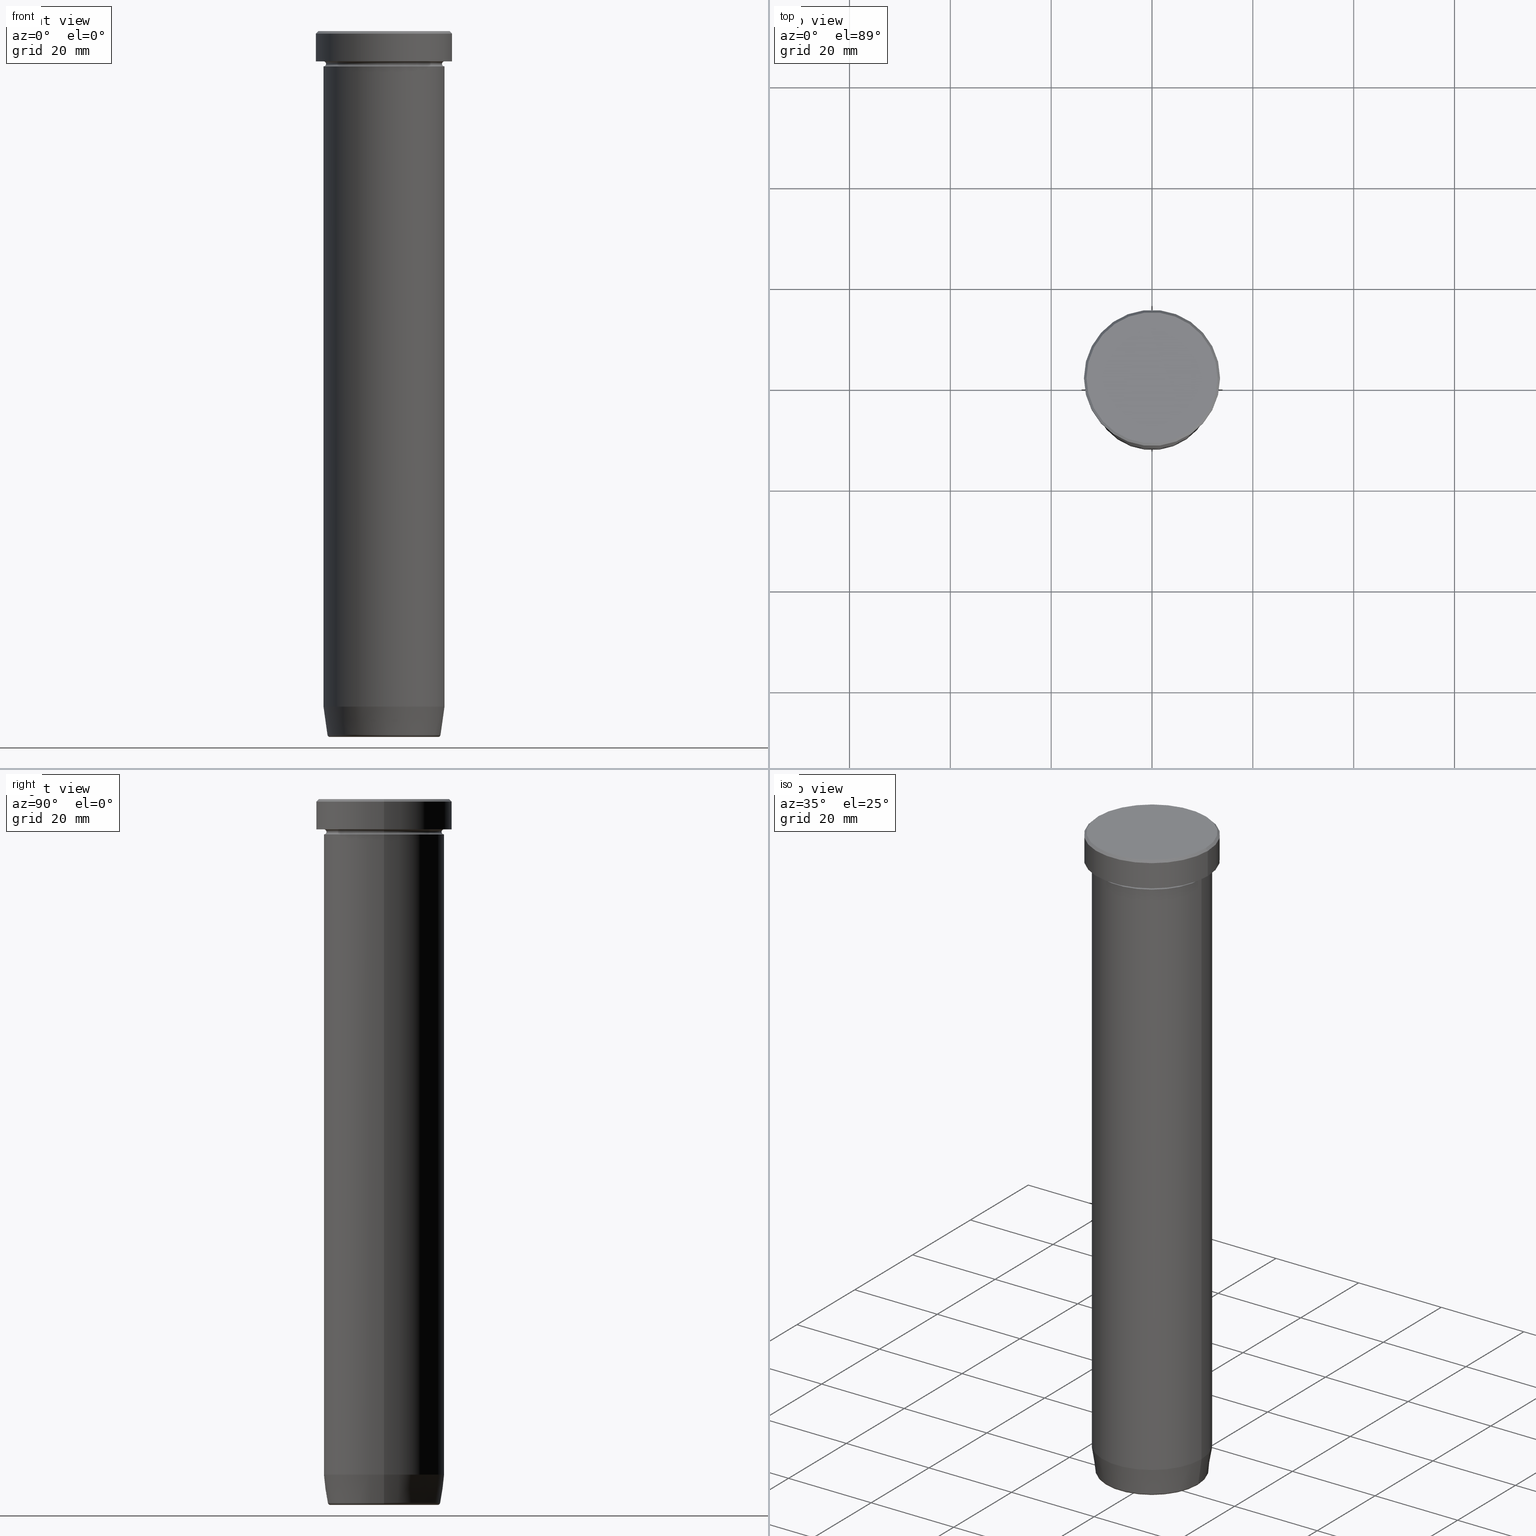
[diagram: canonical four-view strip — front | top / right | iso, engineering-drawing reading convention]
A machine part, canonical four-view strip (front | top / right | iso — engineering-drawing reading convention). The complete STEP part file that produces these views, byte-faithful:
ISO-10303-21;
HEADER;
FILE_DESCRIPTION (( 'STEP AP203' ),
    '1' );
FILE_NAME ('31a6.STEP',
    '2024-01-02T17:52:55',
    ( '' ),
    ( '' ),
    'SwSTEP 2.0',
    'SolidWorks 2019',
    '' );
FILE_SCHEMA (( 'CONFIG_CONTROL_DESIGN' ));
ENDSEC;

DATA;
#1 = AXIS2_PLACEMENT_3D ( 'NONE', #468, #61, #112 ) ;
#2 = CC_DESIGN_DATE_AND_TIME_ASSIGNMENT ( #493, #578, ( #593 ) ) ;
#3 = DIRECTION ( 'NONE',  ( 0.7071067811865439090, 8.659560562354888485E-17, -0.7071067811865512365 ) ) ;
#4 = VECTOR ( 'NONE', #552, 1000.000000000000000 ) ;
#5 = CONICAL_SURFACE ( 'NONE', #515, 12.99999999999999645, 0.7853981633974431720 ) ;
#6 = ORIENTED_EDGE ( 'NONE', *, *, #31, .F. ) ;
#7 = CARTESIAN_POINT ( 'NONE',  ( 12.99999999999999645, 1.622657008870242882E-15, 0.000000000000000000 ) ) ;
#8 = EDGE_LOOP ( 'NONE', ( #286, #555, #152, #334 ) ) ;
#9 = FACE_OUTER_BOUND ( 'NONE', #508, .T. ) ;
#10 = ORIENTED_EDGE ( 'NONE', *, *, #346, .F. ) ;
#11 = ADVANCED_FACE ( 'NONE', ( #105 ), #481, .T. ) ;
#12 = CC_DESIGN_DATE_AND_TIME_ASSIGNMENT ( #531, #448, ( #428 ) ) ;
#13 = DIRECTION ( 'NONE',  ( 1.000000000000000000, 0.000000000000000000, 0.000000000000000000 ) ) ;
#14 = AXIS2_PLACEMENT_3D ( 'NONE', #16, #480, #210 ) ;
#15 = CIRCLE ( 'NONE', #417, 12.00000000000000000 ) ;
#16 = CARTESIAN_POINT ( 'NONE',  ( -10.72211162287753439, 1.313079967905760306E-15, -139.5000000000000000 ) ) ;
#17 = CC_DESIGN_APPROVAL ( #449, ( #593 ) ) ;
#18 = DIRECTION ( 'NONE',  ( 0.000000000000000000, 0.000000000000000000, -1.000000000000000000 ) ) ;
#19 = FACE_BOUND ( 'NONE', #137, .T. ) ;
#20 = ADVANCED_BREP_SHAPE_REPRESENTATION ( '31a6', ( #202, #181, #26 ), #505 ) ;
#21 = DIRECTION ( 'NONE',  ( 1.000000000000000000, 0.000000000000000000, 0.000000000000000000 ) ) ;
#22 = CARTESIAN_POINT ( 'NONE',  ( 0.000000000000000000, 0.000000000000000000, 0.000000000000000000 ) ) ;
#23 = DIRECTION ( 'NONE',  ( -0.1391731009600661872, 1.704378926181564918E-17, 0.9902680687415702510 ) ) ;
#24 = AXIS2_PLACEMENT_3D ( 'NONE', #247, #438, #21 ) ;
#25 = AXIS2_PLACEMENT_3D ( 'NONE', #291, #52, #234 ) ;
#26 = AXIS2_PLACEMENT_3D ( 'NONE', #22, #213, #120 ) ;
#27 = PLANE ( 'NONE',  #204 ) ;
#28 = PERSON_AND_ORGANIZATION_ROLE ( 'design_supplier' ) ;
#29 = CARTESIAN_POINT ( 'NONE',  ( 0.000000000000000000, 0.000000000000000000, -5.999999999999999112 ) ) ;
#30 = ADVANCED_FACE ( 'NONE', ( #254 ), #91, .T. ) ;
#31 = EDGE_CURVE ( 'NONE', #147, #495, #122, .T. ) ;
#32 = PERSON_AND_ORGANIZATION ( #524, #358 ) ;
#33 = LINE ( 'NONE', #274, #482 ) ;
#34 = VERTEX_POINT ( 'NONE', #341 ) ;
#35 = AXIS2_PLACEMENT_3D ( 'NONE', #338, #522, #169 ) ;
#36 = AXIS2_PLACEMENT_3D ( 'NONE', #218, #535, #126 ) ;
#37 = CC_DESIGN_APPROVAL ( #223, ( #428 ) ) ;
#38 = DIRECTION ( 'NONE',  ( 1.000000000000000000, 0.000000000000000000, 0.000000000000000000 ) ) ;
#39 = VERTEX_POINT ( 'NONE', #69 ) ;
#40 = CARTESIAN_POINT ( 'NONE',  ( 0.000000000000000000, 0.000000000000000000, 0.000000000000000000 ) ) ;
#41 = VERTEX_POINT ( 'NONE', #427 ) ;
#42 = APPROVAL_DATE_TIME ( #168, #223 ) ;
#43 = DIRECTION ( 'NONE',  ( 1.000000000000000000, 0.000000000000000000, 0.000000000000000000 ) ) ;
#44 = EDGE_LOOP ( 'NONE', ( #149, #107 ) ) ;
#45 = VECTOR ( 'NONE', #262, 1000.000000000000000 ) ;
#46 = CARTESIAN_POINT ( 'NONE',  ( 12.00000000000000000, 1.469576158976823947E-15, -6.500000000000000888 ) ) ;
#47 = ORIENTED_EDGE ( 'NONE', *, *, #72, .T. ) ;
#48 = CARTESIAN_POINT ( 'NONE',  ( 0.000000000000000000, 0.000000000000000000, 0.000000000000000000 ) ) ;
#49 = ORIENTED_EDGE ( 'NONE', *, *, #411, .T. ) ;
#50 = ADVANCED_FACE ( 'NONE', ( #19, #207 ), #27, .T. ) ;
#51 = EDGE_CURVE ( 'NONE', #491, #595, #433, .T. ) ;
#52 = DIRECTION ( 'NONE',  ( -0.000000000000000000, -0.000000000000000000, 1.000000000000000000 ) ) ;
#53 = EDGE_LOOP ( 'NONE', ( #49, #311, #271, #228 ) ) ;
#54 = CIRCLE ( 'NONE', #386, 12.00000000000000000 ) ;
#55 = LINE ( 'NONE', #89, #4 ) ;
#56 = ORIENTED_EDGE ( 'NONE', *, *, #437, .T. ) ;
#57 = ADVANCED_FACE ( 'NONE', ( #216 ), #343, .T. ) ;
#58 = CYLINDRICAL_SURFACE ( 'NONE', #425, 13.50000000000000000 ) ;
#59 = VERTEX_POINT ( 'NONE', #577 ) ;
#60 = DIRECTION ( 'NONE',  ( -0.000000000000000000, -0.000000000000000000, 1.000000000000000000 ) ) ;
#61 = DIRECTION ( 'NONE',  ( -0.000000000000000000, -0.000000000000000000, 1.000000000000000000 ) ) ;
#62 = AXIS2_PLACEMENT_3D ( 'NONE', #390, #568, #340 ) ;
#63 = CARTESIAN_POINT ( 'NONE',  ( 0.000000000000000000, 0.000000000000000000, -27.00000000000000000 ) ) ;
#64 = APPLICATION_PROTOCOL_DEFINITION ( 'international standard', 'config_control_design', 1994, #151 ) ;
#65 = FACE_OUTER_BOUND ( 'NONE', #470, .T. ) ;
#66 = DIRECTION ( 'NONE',  ( -0.000000000000000000, -0.000000000000000000, 1.000000000000000000 ) ) ;
#67 = DIRECTION ( 'NONE',  ( -0.000000000000000000, -0.000000000000000000, 1.000000000000000000 ) ) ;
#68 = DIRECTION ( 'NONE',  ( 1.000000000000000000, 0.000000000000000000, 0.000000000000000000 ) ) ;
#69 = CARTESIAN_POINT ( 'NONE',  ( 13.50000000000000000, 0.000000000000000000, -0.5000000000000091038 ) ) ;
#70 = VECTOR ( 'NONE', #23, 1000.000000000000000 ) ;
#71 = PERSON_AND_ORGANIZATION_ROLE ( 'classification_officer' ) ;
#72 = EDGE_CURVE ( 'NONE', #595, #143, #195, .T. ) ;
#73 = DIRECTION ( 'NONE',  ( -0.000000000000000000, -0.000000000000000000, 1.000000000000000000 ) ) ;
#74 = EDGE_CURVE ( 'NONE', #39, #156, #512, .T. ) ;
#75 = PERSON_AND_ORGANIZATION_ROLE ( 'design_owner' ) ;
#76 = FACE_OUTER_BOUND ( 'NONE', #199, .T. ) ;
#77 = ORIENTED_EDGE ( 'NONE', *, *, #188, .T. ) ;
#78 = DIRECTION ( 'NONE',  ( 1.000000000000000000, 0.000000000000000000, 0.000000000000000000 ) ) ;
#79 = CLOSED_SHELL ( 'NONE', ( #101, #161, #310, #267, #248, #265, #308, #456, #50, #57, #167, #393, #546 ) ) ;
#80 = ORIENTED_EDGE ( 'NONE', *, *, #500, .F. ) ;
#81 = AXIS2_PLACEMENT_3D ( 'NONE', #430, #67, #212 ) ;
#82 = AXIS2_PLACEMENT_3D ( 'NONE', #40, #186, #85 ) ;
#83 = AXIS2_PLACEMENT_3D ( 'NONE', #154, #380, #382 ) ;
#84 = PERSON_AND_ORGANIZATION_ROLE ( 'creator' ) ;
#85 = DIRECTION ( 'NONE',  ( 1.000000000000000000, 0.000000000000000000, 0.000000000000000000 ) ) ;
#86 = ORIENTED_EDGE ( 'NONE', *, *, #459, .T. ) ;
#87 = DIRECTION ( 'NONE',  ( 1.000000000000000000, 0.000000000000000000, 0.000000000000000000 ) ) ;
#88 = EDGE_LOOP ( 'NONE', ( #245, #377, #187, #323 ) ) ;
#89 = CARTESIAN_POINT ( 'NONE',  ( -12.00000000000000000, 1.469576158976823947E-15, 0.000000000000000000 ) ) ;
#90 = ORIENTED_EDGE ( 'NONE', *, *, #189, .T. ) ;
#91 = CONICAL_SURFACE ( 'NONE', #492, 11.15675499178564678, 0.1396263401595471132 ) ;
#92 = VECTOR ( 'NONE', #509, 1000.000000000000000 ) ;
#93 = DIRECTION ( 'NONE',  ( -0.000000000000000000, -0.000000000000000000, 1.000000000000000000 ) ) ;
#94 = EDGE_CURVE ( 'NONE', #147, #156, #383, .T. ) ;
#95 = ORIENTED_EDGE ( 'NONE', *, *, #346, .T. ) ;
#96 = ADVANCED_FACE ( 'NONE', ( #65 ), #162, .F. ) ;
#97 = FACE_OUTER_BOUND ( 'NONE', #451, .T. ) ;
#98 = ORIENTED_EDGE ( 'NONE', *, *, #141, .T. ) ;
#99 = CARTESIAN_POINT ( 'NONE',  ( 0.000000000000000000, 0.000000000000000000, -6.000000000000000000 ) ) ;
#100 = ORIENTED_EDGE ( 'NONE', *, *, #375, .F. ) ;
#101 = ADVANCED_FACE ( 'NONE', ( #567 ), #172, .T. ) ;
#102 = CIRCLE ( 'NONE', #233, 12.00000000000000000 ) ;
#103 = CARTESIAN_POINT ( 'NONE',  ( 0.000000000000000000, 0.000000000000000000, -139.5000000000000000 ) ) ;
#104 = LOCAL_TIME ( 18, 52, 55.00000000000000000, #484 ) ;
#105 = FACE_OUTER_BOUND ( 'NONE', #237, .T. ) ;
#106 = DIRECTION ( 'NONE',  ( 1.000000000000000000, 0.000000000000000000, 0.000000000000000000 ) ) ;
#107 = ORIENTED_EDGE ( 'NONE', *, *, #140, .F. ) ;
#108 = DIRECTION ( 'NONE',  ( -0.000000000000000000, -0.000000000000000000, 1.000000000000000000 ) ) ;
#109 = APPLICATION_CONTEXT ( 'configuration controlled 3d designs of mechanical parts and assemblies' ) ;
#110 = AXIS2_PLACEMENT_3D ( 'NONE', #306, #108, #472 ) ;
#111 = CIRCLE ( 'NONE', #406, 10.72211162287753439 ) ;
#112 = DIRECTION ( 'NONE',  ( 1.000000000000000000, 0.000000000000000000, 0.000000000000000000 ) ) ;
#113 = CC_DESIGN_PERSON_AND_ORGANIZATION_ASSIGNMENT ( #307, #84, ( #428 ) ) ;
#114 = APPROVAL_PERSON_ORGANIZATION ( #32, #192, #344 ) ;
#115 = CARTESIAN_POINT ( 'NONE',  ( 0.000000000000000000, 0.000000000000000000, -27.00000000000000000 ) ) ;
#116 = CARTESIAN_POINT ( 'NONE',  ( -12.99999999999999645, 0.000000000000000000, 0.000000000000000000 ) ) ;
#117 = DIRECTION ( 'NONE',  ( 0.000000000000000000, 0.000000000000000000, -1.000000000000000000 ) ) ;
#118 = DIRECTION ( 'NONE',  ( -0.000000000000000000, -0.000000000000000000, 1.000000000000000000 ) ) ;
#119 = ADVANCED_FACE ( 'NONE', ( #575 ), #477, .T. ) ;
#120 = DIRECTION ( 'NONE',  ( 1.000000000000000000, 0.000000000000000000, 0.000000000000000000 ) ) ;
#121 = DIRECTION ( 'NONE',  ( 1.000000000000000000, 0.000000000000000000, 0.000000000000000000 ) ) ;
#122 = CIRCLE ( 'NONE', #24, 12.99999999999999645 ) ;
#123 = AXIS2_PLACEMENT_3D ( 'NONE', #579, #485, #594 ) ;
#124 = APPROVAL_PERSON_ORGANIZATION ( #135, #223, #177 ) ;
#125 = CALENDAR_DATE ( 2024, 2, 1 ) ;
#126 = DIRECTION ( 'NONE',  ( 1.000000000000000000, 0.000000000000000000, 0.000000000000000000 ) ) ;
#127 = ORIENTED_EDGE ( 'NONE', *, *, #474, .F. ) ;
#128 = DIRECTION ( 'NONE',  ( -0.000000000000000000, -0.000000000000000000, 1.000000000000000000 ) ) ;
#129 = ORIENTED_EDGE ( 'NONE', *, *, #74, .F. ) ;
#130 = CALENDAR_DATE ( 2024, 2, 1 ) ;
#131 = CARTESIAN_POINT ( 'NONE',  ( 0.000000000000000000, 0.000000000000000000, 0.000000000000000000 ) ) ;
#132 = EDGE_LOOP ( 'NONE', ( #542, #421, #330, #200 ) ) ;
#133 = CIRCLE ( 'NONE', #455, 0.5000000000000004441 ) ;
#134 = CIRCLE ( 'NONE', #457, 0.5000000000000004441 ) ;
#135 = PERSON_AND_ORGANIZATION ( #524, #358 ) ;
#136 = LINE ( 'NONE', #395, #45 ) ;
#137 = EDGE_LOOP ( 'NONE', ( #191, #374 ) ) ;
#138 = PLANE ( 'NONE',  #36 ) ;
#139 = ORIENTED_EDGE ( 'NONE', *, *, #564, .F. ) ;
#140 = EDGE_CURVE ( 'NONE', #591, #59, #443, .T. ) ;
#141 = EDGE_CURVE ( 'NONE', #34, #506, #523, .T. ) ;
#142 = DIRECTION ( 'NONE',  ( 0.000000000000000000, 0.000000000000000000, -1.000000000000000000 ) ) ;
#143 = VERTEX_POINT ( 'NONE', #164 ) ;
#144 = AXIS2_PLACEMENT_3D ( 'NONE', #532, #520, #476 ) ;
#145 = AXIS2_PLACEMENT_3D ( 'NONE', #333, #337, #106 ) ;
#146 = CARTESIAN_POINT ( 'NONE',  ( 12.00000000000000000, 0.000000000000000000, -7.000000000000000000 ) ) ;
#147 = VERTEX_POINT ( 'NONE', #116 ) ;
#148 = DIRECTION ( 'NONE',  ( -0.000000000000000000, -0.000000000000000000, 1.000000000000000000 ) ) ;
#149 = ORIENTED_EDGE ( 'NONE', *, *, #411, .F. ) ;
#150 = DIRECTION ( 'NONE',  ( -0.000000000000000000, -0.000000000000000000, 1.000000000000000000 ) ) ;
#151 = APPLICATION_CONTEXT ( 'configuration controlled 3d designs of mechanical parts and assemblies' ) ;
#152 = ORIENTED_EDGE ( 'NONE', *, *, #565, .T. ) ;
#153 = AXIS2_PLACEMENT_3D ( 'NONE', #405, #452, #43 ) ;
#154 = CARTESIAN_POINT ( 'NONE',  ( 0.000000000000000000, 0.000000000000000000, -6.000000000000000000 ) ) ;
#155 = CIRCLE ( 'NONE', #83, 12.00000000000000000 ) ;
#156 = VERTEX_POINT ( 'NONE', #302 ) ;
#157 = DIRECTION ( 'NONE',  ( 0.000000000000000000, -1.000000000000000000, 0.000000000000000000 ) ) ;
#158 = DIRECTION ( 'NONE',  ( 1.000000000000000000, 0.000000000000000000, 0.000000000000000000 ) ) ;
#159 = EDGE_CURVE ( 'NONE', #595, #585, #256, .T. ) ;
#160 = CARTESIAN_POINT ( 'NONE',  ( 12.00000000000000000, 0.000000000000000000, -27.00000000000000000 ) ) ;
#161 = ADVANCED_FACE ( 'NONE', ( #215 ), #240, .F. ) ;
#162 = PLANE ( 'NONE',  #397 ) ;
#163 = FACE_OUTER_BOUND ( 'NONE', #288, .T. ) ;
#164 = CARTESIAN_POINT ( 'NONE',  ( 11.21724565724831990, 0.000000000000000000, -139.5695865504800395 ) ) ;
#165 = CARTESIAN_POINT ( 'NONE',  ( 0.000000000000000000, 0.000000000000000000, 0.000000000000000000 ) ) ;
#166 = CARTESIAN_POINT ( 'NONE',  ( -12.99999999999999645, 0.000000000000000000, 0.000000000000000000 ) ) ;
#167 = ADVANCED_FACE ( 'NONE', ( #541 ), #205, .F. ) ;
#168 = DATE_AND_TIME ( #174, #104 ) ;
#169 = DIRECTION ( 'NONE',  ( -1.000000000000000000, 0.000000000000000000, 0.000000000000000000 ) ) ;
#170 = PERSON_AND_ORGANIZATION ( #524, #358 ) ;
#171 = FACE_OUTER_BOUND ( 'NONE', #275, .T. ) ;
#172 = CONICAL_SURFACE ( 'NONE', #144, 12.99999999999999645, 0.7853981633974431720 ) ;
#173 = ORIENTED_EDGE ( 'NONE', *, *, #140, .T. ) ;
#174 = CALENDAR_DATE ( 2024, 2, 1 ) ;
#175 = CARTESIAN_POINT ( 'NONE',  ( 0.000000000000000000, 0.000000000000000000, -6.500000000000000888 ) ) ;
#176 = ORIENTED_EDGE ( 'NONE', *, *, #293, .T. ) ;
#177 = APPROVAL_ROLE ( '' ) ;
#178 = CYLINDRICAL_SURFACE ( 'NONE', #357, 12.00000000000000000 ) ;
#179 = VERTEX_POINT ( 'NONE', #589 ) ;
#180 = DESIGN_CONTEXT ( 'detailed design', #109, 'design' ) ;
#181 = MANIFOLD_SOLID_BREP ( 'Zaoblit4', #378 ) ;
#182 = CALENDAR_DATE ( 2024, 2, 1 ) ;
#183 = DIRECTION ( 'NONE',  ( -1.000000000000000000, 0.000000000000000000, -0.000000000000000000 ) ) ;
#184 = EDGE_LOOP ( 'NONE', ( #502, #47, #488, #396 ) ) ;
#185 = CIRCLE ( 'NONE', #581, 12.00000000000000000 ) ;
#186 = DIRECTION ( 'NONE',  ( -0.000000000000000000, -0.000000000000000000, 1.000000000000000000 ) ) ;
#187 = ORIENTED_EDGE ( 'NONE', *, *, #473, .F. ) ;
#188 = EDGE_CURVE ( 'NONE', #41, #39, #33, .T. ) ;
#189 = EDGE_CURVE ( 'NONE', #458, #598, #251, .T. ) ;
#190 = FACE_OUTER_BOUND ( 'NONE', #284, .T. ) ;
#191 = ORIENTED_EDGE ( 'NONE', *, *, #564, .T. ) ;
#192 = APPROVAL ( #229, 'NEUR�EN�' ) ;
#193 = CARTESIAN_POINT ( 'NONE',  ( 0.000000000000000000, 0.000000000000000000, -27.00000000000000000 ) ) ;
#194 = ORIENTED_EDGE ( 'NONE', *, *, #348, .F. ) ;
#195 = CIRCLE ( 'NONE', #35, 11.21724565724831990 ) ;
#196 = AXIS2_PLACEMENT_3D ( 'NONE', #29, #354, #356 ) ;
#197 = LOCAL_TIME ( 18, 52, 55.00000000000000000, #317 ) ;
#198 = DIRECTION ( 'NONE',  ( -0.000000000000000000, -0.000000000000000000, 1.000000000000000000 ) ) ;
#199 = EDGE_LOOP ( 'NONE', ( #359, #580 ) ) ;
#200 = ORIENTED_EDGE ( 'NONE', *, *, #188, .F. ) ;
#201 = CARTESIAN_POINT ( 'NONE',  ( -12.00000000000000000, 1.469576158976823947E-15, 0.000000000000000000 ) ) ;
#202 = MANIFOLD_SOLID_BREP ( 'Zkosen�1', #79 ) ;
#203 = ORIENTED_EDGE ( 'NONE', *, *, #582, .F. ) ;
#204 = AXIS2_PLACEMENT_3D ( 'NONE', #389, #423, #300 ) ;
#205 = TOROIDAL_SURFACE ( 'NONE', #153, 12.00000000000000000, 0.5000000000000000000 ) ;
#206 = CIRCLE ( 'NONE', #483, 10.72211162287753439 ) ;
#207 = FACE_OUTER_BOUND ( 'NONE', #355, .T. ) ;
#208 = EDGE_CURVE ( 'NONE', #34, #598, #299, .T. ) ;
#209 = EDGE_CURVE ( 'NONE', #156, #39, #561, .T. ) ;
#210 = DIRECTION ( 'NONE',  ( -1.000000000000000000, 1.224646799147353454E-16, 0.000000000000000000 ) ) ;
#211 = CC_DESIGN_PERSON_AND_ORGANIZATION_ASSIGNMENT ( #439, #28, ( #534 ) ) ;
#212 = DIRECTION ( 'NONE',  ( 1.000000000000000000, 0.000000000000000000, 0.000000000000000000 ) ) ;
#213 = DIRECTION ( 'NONE',  ( 0.000000000000000000, 0.000000000000000000, 1.000000000000000000 ) ) ;
#214 = TOROIDAL_SURFACE ( 'NONE', #504, 12.00000000000000000, 0.5000000000000000000 ) ;
#215 = FACE_OUTER_BOUND ( 'NONE', #557, .T. ) ;
#216 = FACE_OUTER_BOUND ( 'NONE', #243, .T. ) ;
#217 = COORDINATED_UNIVERSAL_TIME_OFFSET ( 1, 0, .AHEAD. ) ;
#218 = CARTESIAN_POINT ( 'NONE',  ( 0.000000000000000000, 0.000000000000000000, 0.000000000000000000 ) ) ;
#219 = CARTESIAN_POINT ( 'NONE',  ( 10.72211162287753439, 0.000000000000000000, -140.0000000000000000 ) ) ;
#220 = AXIS2_PLACEMENT_3D ( 'NONE', #165, #60, #68 ) ;
#221 = ORIENTED_EDGE ( 'NONE', *, *, #295, .F. ) ;
#222 = AXIS2_PLACEMENT_3D ( 'NONE', #342, #66, #516 ) ;
#223 = APPROVAL ( #583, 'NEUR�EN�' ) ;
#224 = CYLINDRICAL_SURFACE ( 'NONE', #259, 13.50000000000000000 ) ;
#225 = ORIENTED_EDGE ( 'NONE', *, *, #94, .F. ) ;
#226 = COORDINATED_UNIVERSAL_TIME_OFFSET ( 1, 0, .AHEAD. ) ;
#227 = DIRECTION ( 'NONE',  ( -0.000000000000000000, -0.000000000000000000, 1.000000000000000000 ) ) ;
#228 = ORIENTED_EDGE ( 'NONE', *, *, #410, .F. ) ;
#229 = APPROVAL_STATUS ( 'not_yet_approved' ) ;
#230 = CARTESIAN_POINT ( 'NONE',  ( -12.00000000000000000, 1.469576158976823947E-15, -6.500000000000000888 ) ) ;
#231 = EDGE_CURVE ( 'NONE', #232, #491, #111, .T. ) ;
#232 = VERTEX_POINT ( 'NONE', #219 ) ;
#233 = AXIS2_PLACEMENT_3D ( 'NONE', #350, #487, #87 ) ;
#234 = DIRECTION ( 'NONE',  ( 1.000000000000000000, 0.000000000000000000, 0.000000000000000000 ) ) ;
#235 = ORIENTED_EDGE ( 'NONE', *, *, #231, .T. ) ;
#236 = CARTESIAN_POINT ( 'NONE',  ( 12.00000000000000000, 0.000000000000000000, 0.000000000000000000 ) ) ;
#237 = EDGE_LOOP ( 'NONE', ( #498, #599, #194, #221 ) ) ;
#238 = CARTESIAN_POINT ( 'NONE',  ( 0.000000000000000000, 0.000000000000000000, -27.00000000000000000 ) ) ;
#239 = ORIENTED_EDGE ( 'NONE', *, *, #410, .T. ) ;
#240 = TOROIDAL_SURFACE ( 'NONE', #553, 12.00000000000000000, 0.5000000000000000000 ) ;
#241 = CIRCLE ( 'NONE', #369, 12.00000000000000000 ) ;
#242 = DIRECTION ( 'NONE',  ( -1.000000000000000000, -1.224646799147353454E-16, 0.000000000000000000 ) ) ;
#243 = EDGE_LOOP ( 'NONE', ( #100, #173, #239, #419 ) ) ;
#244 = DIRECTION ( 'NONE',  ( -0.000000000000000000, -0.000000000000000000, 1.000000000000000000 ) ) ;
#245 = ORIENTED_EDGE ( 'NONE', *, *, #348, .T. ) ;
#246 = DIRECTION ( 'NONE',  ( 0.000000000000000000, 0.000000000000000000, -1.000000000000000000 ) ) ;
#247 = CARTESIAN_POINT ( 'NONE',  ( 0.000000000000000000, 0.000000000000000000, 0.000000000000000000 ) ) ;
#248 = ADVANCED_FACE ( 'NONE', ( #401 ), #224, .T. ) ;
#249 = ADVANCED_FACE ( 'NONE', ( #171 ), #490, .T. ) ;
#250 = AXIS2_PLACEMENT_3D ( 'NONE', #63, #529, #253 ) ;
#251 = CIRCLE ( 'NONE', #123, 12.00000000000000000 ) ;
#252 = DIRECTION ( 'NONE',  ( -1.000000000000000000, 0.000000000000000000, -0.000000000000000000 ) ) ;
#253 = DIRECTION ( 'NONE',  ( 1.000000000000000000, 0.000000000000000000, 0.000000000000000000 ) ) ;
#254 = FACE_OUTER_BOUND ( 'NONE', #184, .T. ) ;
#255 = DIRECTION ( 'NONE',  ( 1.000000000000000000, 0.000000000000000000, 0.000000000000000000 ) ) ;
#256 = LINE ( 'NONE', #432, #70 ) ;
#257 = VECTOR ( 'NONE', #569, 1000.000000000000000 ) ;
#258 = DIRECTION ( 'NONE',  ( -0.000000000000000000, -1.000000000000000000, -0.000000000000000000 ) ) ;
#259 = AXIS2_PLACEMENT_3D ( 'NONE', #131, #73, #78 ) ;
#260 = DIRECTION ( 'NONE',  ( -0.000000000000000000, -0.000000000000000000, 1.000000000000000000 ) ) ;
#261 = PERSON_AND_ORGANIZATION_ROLE ( 'creator' ) ;
#262 = DIRECTION ( 'NONE',  ( 0.1391731009600661872, 0.000000000000000000, 0.9902680687415702510 ) ) ;
#263 = PRODUCT ( '31a6', '31a6', '', ( #347 ) ) ;
#264 = DIRECTION ( 'NONE',  ( 1.000000000000000000, 0.000000000000000000, 0.000000000000000000 ) ) ;
#265 = ADVANCED_FACE ( 'NONE', ( #494 ), #277, .T. ) ;
#266 = ORIENTED_EDGE ( 'NONE', *, *, #565, .F. ) ;
#267 = ADVANCED_FACE ( 'NONE', ( #497 ), #178, .T. ) ;
#268 = DIRECTION ( 'NONE',  ( 0.000000000000000000, 0.000000000000000000, -1.000000000000000000 ) ) ;
#269 = AXIS2_PLACEMENT_3D ( 'NONE', #527, #385, #571 ) ;
#270 = AXIS2_PLACEMENT_3D ( 'NONE', #103, #366, #560 ) ;
#271 = ORIENTED_EDGE ( 'NONE', *, *, #189, .F. ) ;
#272 = CC_DESIGN_PERSON_AND_ORGANIZATION_ASSIGNMENT ( #304, #261, ( #534 ) ) ;
#273 = APPROVAL_DATE_TIME ( #353, #192 ) ;
#274 = CARTESIAN_POINT ( 'NONE',  ( 13.50000000000000000, 0.000000000000000000, 0.000000000000000000 ) ) ;
#275 = EDGE_LOOP ( 'NONE', ( #127, #545, #466, #514 ) ) ;
#276 = EDGE_CURVE ( 'NONE', #41, #321, #533, .T. ) ;
#277 = PLANE ( 'NONE',  #592 ) ;
#278 = ORIENTED_EDGE ( 'NONE', *, *, #208, .F. ) ;
#279 = CARTESIAN_POINT ( 'NONE',  ( 0.000000000000000000, 0.000000000000000000, -5.999999999999999112 ) ) ;
#280 = ORIENTED_EDGE ( 'NONE', *, *, #208, .T. ) ;
#281 = VECTOR ( 'NONE', #507, 1000.000000000000000 ) ;
#282 = LOCAL_TIME ( 18, 52, 55.00000000000000000, #217 ) ;
#283 = DIRECTION ( 'NONE',  ( 1.000000000000000000, 0.000000000000000000, 0.000000000000000000 ) ) ;
#284 = EDGE_LOOP ( 'NONE', ( #371, #463, #461, #266 ) ) ;
#285 = LINE ( 'NONE', #328, #465 ) ;
#286 = ORIENTED_EDGE ( 'NONE', *, *, #51, .F. ) ;
#287 = DIRECTION ( 'NONE',  ( -0.000000000000000000, -0.000000000000000000, 1.000000000000000000 ) ) ;
#288 = EDGE_LOOP ( 'NONE', ( #292, #6, #416, #129 ) ) ;
#289 = CIRCLE ( 'NONE', #331, 12.00000000000000000 ) ;
#290 = AXIS2_PLACEMENT_3D ( 'NONE', #115, #388, #252 ) ;
#291 = CARTESIAN_POINT ( 'NONE',  ( 0.000000000000000000, 0.000000000000000000, -139.5000000000000000 ) ) ;
#292 = ORIENTED_EDGE ( 'NONE', *, *, #459, .F. ) ;
#293 = EDGE_CURVE ( 'NONE', #539, #562, #102, .T. ) ;
#294 = PLANE ( 'NONE',  #290 ) ;
#295 = EDGE_CURVE ( 'NONE', #143, #363, #136, .T. ) ;
#296 = ORIENTED_EDGE ( 'NONE', *, *, #332, .F. ) ;
#297 = DIRECTION ( 'NONE',  ( -0.000000000000000000, -0.000000000000000000, 1.000000000000000000 ) ) ;
#298 = DIRECTION ( 'NONE',  ( 0.000000000000000000, -0.000000000000000000, 1.000000000000000000 ) ) ;
#299 = CIRCLE ( 'NONE', #445, 0.5000000000000004441 ) ;
#300 = DIRECTION ( 'NONE',  ( -1.000000000000000000, 0.000000000000000000, -0.000000000000000000 ) ) ;
#301 = CARTESIAN_POINT ( 'NONE',  ( -12.00000000000000000, 1.469576158976823947E-15, -7.000000000000000000 ) ) ;
#302 = CARTESIAN_POINT ( 'NONE',  ( -13.50000000000000000, 1.653273178848926867E-15, -0.5000000000000091038 ) ) ;
#303 = CARTESIAN_POINT ( 'NONE',  ( -11.21724565724831990, 1.421646278958347253E-15, -139.5695865504800395 ) ) ;
#304 = PERSON_AND_ORGANIZATION ( #524, #358 ) ;
#305 = AXIS2_PLACEMENT_3D ( 'NONE', #403, #440, #314 ) ;
#306 = CARTESIAN_POINT ( 'NONE',  ( 0.000000000000000000, 0.000000000000000000, 0.000000000000000000 ) ) ;
#307 = PERSON_AND_ORGANIZATION ( #524, #358 ) ;
#308 = ADVANCED_FACE ( 'NONE', ( #76 ), #138, .T. ) ;
#309 = DIRECTION ( 'NONE',  ( -1.000000000000000000, 0.000000000000000000, 0.000000000000000000 ) ) ;
#310 = ADVANCED_FACE ( 'NONE', ( #441 ), #572, .F. ) ;
#311 = ORIENTED_EDGE ( 'NONE', *, *, #375, .T. ) ;
#312 = DIRECTION ( 'NONE',  ( 1.224646799147353207E-16, 1.000000000000000000, 0.000000000000000000 ) ) ;
#313 = EDGE_LOOP ( 'NONE', ( #453, #176 ) ) ;
#314 = DIRECTION ( 'NONE',  ( 1.000000000000000000, 0.000000000000000000, 0.000000000000000000 ) ) ;
#315 = AXIS2_PLACEMENT_3D ( 'NONE', #175, #128, #412 ) ;
#316 = CIRCLE ( 'NONE', #222, 12.00000000000000000 ) ;
#317 = COORDINATED_UNIVERSAL_TIME_OFFSET ( 1, 0, .AHEAD. ) ;
#318 = DIRECTION ( 'NONE',  ( -0.000000000000000000, -0.000000000000000000, 1.000000000000000000 ) ) ;
#319 = EDGE_LOOP ( 'NONE', ( #278, #80, #95, #90 ) ) ;
#320 = DIRECTION ( 'NONE',  ( -0.000000000000000000, -0.000000000000000000, 1.000000000000000000 ) ) ;
#321 = VERTEX_POINT ( 'NONE', #537 ) ;
#322 = CARTESIAN_POINT ( 'NONE',  ( 12.00000000000000000, 0.000000000000000000, -6.500000000000000888 ) ) ;
#323 = ORIENTED_EDGE ( 'NONE', *, *, #326, .F. ) ;
#324 = VECTOR ( 'NONE', #408, 1000.000000000000000 ) ;
#325 = CARTESIAN_POINT ( 'NONE',  ( -13.50000000000000000, 1.653273178848926867E-15, 0.000000000000000000 ) ) ;
#326 = EDGE_CURVE ( 'NONE', #363, #562, #597, .T. ) ;
#327 = ORIENTED_EDGE ( 'NONE', *, *, #209, .F. ) ;
#328 = CARTESIAN_POINT ( 'NONE',  ( 12.99999999999999645, 1.592040838891558701E-15, 0.000000000000000000 ) ) ;
#329 = EDGE_LOOP ( 'NONE', ( #367, #86, #327, #225 ) ) ;
#330 = ORIENTED_EDGE ( 'NONE', *, *, #209, .T. ) ;
#331 = AXIS2_PLACEMENT_3D ( 'NONE', #462, #320, #558 ) ;
#332 = EDGE_CURVE ( 'NONE', #321, #156, #550, .T. ) ;
#333 = CARTESIAN_POINT ( 'NONE',  ( 0.000000000000000000, 0.000000000000000000, -6.500000000000000888 ) ) ;
#334 = ORIENTED_EDGE ( 'NONE', *, *, #72, .F. ) ;
#335 = CARTESIAN_POINT ( 'NONE',  ( 12.00000000000000000, 1.469576158976823947E-15, -6.000000000000000000 ) ) ;
#336 = CARTESIAN_POINT ( 'NONE',  ( 0.000000000000000000, 0.000000000000000000, -140.0000000000000000 ) ) ;
#337 = DIRECTION ( 'NONE',  ( -0.000000000000000000, -0.000000000000000000, 1.000000000000000000 ) ) ;
#338 = CARTESIAN_POINT ( 'NONE',  ( 0.000000000000000000, 0.000000000000000000, -139.5695865504800395 ) ) ;
#339 = VECTOR ( 'NONE', #93, 1000.000000000000000 ) ;
#340 = DIRECTION ( 'NONE',  ( -1.000000000000000000, 0.000000000000000000, 0.000000000000000000 ) ) ;
#341 = CARTESIAN_POINT ( 'NONE',  ( -11.50000000000000000, 1.438959988998139963E-15, -6.500000000000000888 ) ) ;
#342 = CARTESIAN_POINT ( 'NONE',  ( 0.000000000000000000, 0.000000000000000000, -7.000000000000000000 ) ) ;
#343 = CYLINDRICAL_SURFACE ( 'NONE', #424, 12.00000000000000000 ) ;
#344 = APPROVAL_ROLE ( '' ) ;
#345 = CARTESIAN_POINT ( 'NONE',  ( 0.000000000000000000, 7.347880794884119933E-15, -140.0000000000000000 ) ) ;
#346 = EDGE_CURVE ( 'NONE', #506, #458, #368, .T. ) ;
#347 = MECHANICAL_CONTEXT ( 'NONE', #151, 'mechanical' ) ;
#348 = EDGE_CURVE ( 'NONE', #363, #585, #289, .T. ) ;
#349 = CIRCLE ( 'NONE', #415, 13.50000000000000000 ) ;
#350 = CARTESIAN_POINT ( 'NONE',  ( 0.000000000000000000, 0.000000000000000000, -27.00000000000000000 ) ) ;
#351 = DATE_AND_TIME ( #130, #197 ) ;
#352 = ORIENTED_EDGE ( 'NONE', *, *, #141, .F. ) ;
#353 = DATE_AND_TIME ( #125, #573 ) ;
#354 = DIRECTION ( 'NONE',  ( -0.000000000000000000, -0.000000000000000000, 1.000000000000000000 ) ) ;
#355 = EDGE_LOOP ( 'NONE', ( #442, #510 ) ) ;
#356 = DIRECTION ( 'NONE',  ( 1.000000000000000000, 0.000000000000000000, 0.000000000000000000 ) ) ;
#357 = AXIS2_PLACEMENT_3D ( 'NONE', #547, #318, #264 ) ;
#358 = ORGANIZATION ( 'NEUR�EN�', 'NEUR�EN�', '' ) ;
#359 = ORIENTED_EDGE ( 'NONE', *, *, #31, .T. ) ;
#360 = CARTESIAN_POINT ( 'NONE',  ( 0.000000000000000000, 12.00000000000000000, -27.00000000000000000 ) ) ;
#361 = EDGE_LOOP ( 'NONE', ( #352, #280, #409, #10 ) ) ;
#362 = CARTESIAN_POINT ( 'NONE',  ( 0.000000000000000000, 0.000000000000000000, -6.500000000000000888 ) ) ;
#363 = VERTEX_POINT ( 'NONE', #501 ) ;
#364 = ADVANCED_FACE ( 'NONE', ( #376 ), #525, .T. ) ;
#365 = EDGE_CURVE ( 'NONE', #506, #587, #133, .T. ) ;
#366 = DIRECTION ( 'NONE',  ( -0.000000000000000000, -0.000000000000000000, 1.000000000000000000 ) ) ;
#367 = ORIENTED_EDGE ( 'NONE', *, *, #518, .F. ) ;
#368 = CIRCLE ( 'NONE', #434, 0.5000000000000004441 ) ;
#369 = AXIS2_PLACEMENT_3D ( 'NONE', #574, #297, #255 ) ;
#370 = DIRECTION ( 'NONE',  ( 1.000000000000000000, 0.000000000000000000, 0.000000000000000000 ) ) ;
#371 = ORIENTED_EDGE ( 'NONE', *, *, #584, .F. ) ;
#372 = PRODUCT_DEFINITION_SHAPE ( 'NONE', 'NONE',  #428 ) ;
#373 = DIRECTION ( 'NONE',  ( 0.000000000000000000, 0.000000000000000000, -1.000000000000000000 ) ) ;
#374 = ORIENTED_EDGE ( 'NONE', *, *, #478, .T. ) ;
#375 = EDGE_CURVE ( 'NONE', #591, #598, #55, .T. ) ;
#376 = FACE_OUTER_BOUND ( 'NONE', #8, .T. ) ;
#377 = ORIENTED_EDGE ( 'NONE', *, *, #474, .T. ) ;
#378 = CLOSED_SHELL ( 'NONE', ( #392, #11, #119, #538, #249, #30, #96, #364 ) ) ;
#379 = TOROIDAL_SURFACE ( 'NONE', #25, 10.72211162287753439, 0.5000000000000000000 ) ;
#380 = DIRECTION ( 'NONE',  ( -0.000000000000000000, -0.000000000000000000, 1.000000000000000000 ) ) ;
#381 = DIRECTION ( 'NONE',  ( 1.000000000000000000, 0.000000000000000000, 0.000000000000000000 ) ) ;
#382 = DIRECTION ( 'NONE',  ( -1.000000000000000000, 0.000000000000000000, 0.000000000000000000 ) ) ;
#383 = LINE ( 'NONE', #166, #257 ) ;
#384 = DIRECTION ( 'NONE',  ( -1.000000000000000000, 0.000000000000000000, 0.000000000000000000 ) ) ;
#385 = DIRECTION ( 'NONE',  ( 0.000000000000000000, 0.000000000000000000, -1.000000000000000000 ) ) ;
#386 = AXIS2_PLACEMENT_3D ( 'NONE', #238, #198, #370 ) ;
#387 = CIRCLE ( 'NONE', #543, 0.5000000000000004441 ) ;
#388 = DIRECTION ( 'NONE',  ( 0.000000000000000000, 0.000000000000000000, -1.000000000000000000 ) ) ;
#389 = CARTESIAN_POINT ( 'NONE',  ( 0.000000000000000000, 13.50000000000000000, -6.000000000000000000 ) ) ;
#390 = CARTESIAN_POINT ( 'NONE',  ( 0.000000000000000000, 0.000000000000000000, -139.5695865504800395 ) ) ;
#391 = CARTESIAN_POINT ( 'NONE',  ( 0.000000000000000000, 0.000000000000000000, 0.000000000000000000 ) ) ;
#392 = ADVANCED_FACE ( 'NONE', ( #190 ), #379, .T. ) ;
#393 = ADVANCED_FACE ( 'NONE', ( #97 ), #214, .F. ) ;
#394 = PERSON_AND_ORGANIZATION ( #524, #358 ) ;
#395 = CARTESIAN_POINT ( 'NONE',  ( 11.15675499178564678, 0.000000000000000000, -140.0000000000000000 ) ) ;
#396 = ORIENTED_EDGE ( 'NONE', *, *, #590, .F. ) ;
#397 = AXIS2_PLACEMENT_3D ( 'NONE', #345, #298, #121 ) ;
#398 = APPROVAL_STATUS ( 'not_yet_approved' ) ;
#399 = CIRCLE ( 'NONE', #145, 11.50000000000000000 ) ;
#400 = DIRECTION ( 'NONE',  ( 0.000000000000000000, 0.000000000000000000, -1.000000000000000000 ) ) ;
#401 = FACE_OUTER_BOUND ( 'NONE', #132, .T. ) ;
#402 = COORDINATED_UNIVERSAL_TIME_OFFSET ( 1, 0, .AHEAD. ) ;
#403 = CARTESIAN_POINT ( 'NONE',  ( 0.000000000000000000, 0.000000000000000000, -0.5000000000000091038 ) ) ;
#404 = ORIENTED_EDGE ( 'NONE', *, *, #365, .F. ) ;
#405 = CARTESIAN_POINT ( 'NONE',  ( 0.000000000000000000, 0.000000000000000000, -6.500000000000000888 ) ) ;
#406 = AXIS2_PLACEMENT_3D ( 'NONE', #450, #447, #38 ) ;
#407 = ORIENTED_EDGE ( 'NONE', *, *, #365, .T. ) ;
#408 = DIRECTION ( 'NONE',  ( -0.000000000000000000, -0.000000000000000000, 1.000000000000000000 ) ) ;
#409 = ORIENTED_EDGE ( 'NONE', *, *, #519, .T. ) ;
#410 = EDGE_CURVE ( 'NONE', #59, #458, #503, .T. ) ;
#411 = EDGE_CURVE ( 'NONE', #59, #591, #15, .T. ) ;
#412 = DIRECTION ( 'NONE',  ( 1.000000000000000000, 0.000000000000000000, 0.000000000000000000 ) ) ;
#413 = ORIENTED_EDGE ( 'NONE', *, *, #582, .T. ) ;
#414 = CARTESIAN_POINT ( 'NONE',  ( 12.00000000000000000, 0.000000000000000000, 0.000000000000000000 ) ) ;
#415 = AXIS2_PLACEMENT_3D ( 'NONE', #279, #148, #460 ) ;
#416 = ORIENTED_EDGE ( 'NONE', *, *, #94, .T. ) ;
#417 = AXIS2_PLACEMENT_3D ( 'NONE', #193, #150, #283 ) ;
#418 = CARTESIAN_POINT ( 'NONE',  ( -10.72211162287753439, 1.343398183422815235E-15, -140.0000000000000000 ) ) ;
#419 = ORIENTED_EDGE ( 'NONE', *, *, #519, .F. ) ;
#420 = DIRECTION ( 'NONE',  ( 1.000000000000000000, 0.000000000000000000, 0.000000000000000000 ) ) ;
#421 = ORIENTED_EDGE ( 'NONE', *, *, #332, .T. ) ;
#422 = CARTESIAN_POINT ( 'NONE',  ( 0.000000000000000000, 0.000000000000000000, -140.0000000000000000 ) ) ;
#423 = DIRECTION ( 'NONE',  ( 0.000000000000000000, 0.000000000000000000, -1.000000000000000000 ) ) ;
#424 = AXIS2_PLACEMENT_3D ( 'NONE', #391, #118, #381 ) ;
#425 = AXIS2_PLACEMENT_3D ( 'NONE', #48, #244, #420 ) ;
#426 =( NAMED_UNIT ( * ) SI_UNIT ( $, .STERADIAN. ) SOLID_ANGLE_UNIT ( ) );
#427 = CARTESIAN_POINT ( 'NONE',  ( 13.50000000000000000, 0.000000000000000000, -5.999999999999999112 ) ) ;
#428 = PRODUCT_DEFINITION ( 'NEZN�M�', '', #534, #180 ) ;
#429 = CARTESIAN_POINT ( 'NONE',  ( -12.00000000000000000, 0.000000000000000000, -6.500000000000000888 ) ) ;
#430 = CARTESIAN_POINT ( 'NONE',  ( 0.000000000000000000, 0.000000000000000000, -6.500000000000000888 ) ) ;
#431 = CARTESIAN_POINT ( 'NONE',  ( -12.00000000000000000, 1.469576158976823947E-15, -134.0000000000000000 ) ) ;
#432 = CARTESIAN_POINT ( 'NONE',  ( -11.15675499178564678, 1.366308428956154791E-15, -140.0000000000000000 ) ) ;
#433 = CIRCLE ( 'NONE', #14, 0.5000000000000004441 ) ;
#434 = AXIS2_PLACEMENT_3D ( 'NONE', #322, #454, #373 ) ;
#435 = LOCAL_TIME ( 18, 52, 55.00000000000000000, #402 ) ;
#436 = CARTESIAN_POINT ( 'NONE',  ( -12.00000000000000000, 1.469576158976823947E-15, -27.00000000000000000 ) ) ;
#437 = EDGE_CURVE ( 'NONE', #321, #41, #349, .T. ) ;
#438 = DIRECTION ( 'NONE',  ( -0.000000000000000000, -0.000000000000000000, 1.000000000000000000 ) ) ;
#439 = PERSON_AND_ORGANIZATION ( #524, #358 ) ;
#440 = DIRECTION ( 'NONE',  ( 0.000000000000000000, 0.000000000000000000, -1.000000000000000000 ) ) ;
#441 = FACE_OUTER_BOUND ( 'NONE', #361, .T. ) ;
#442 = ORIENTED_EDGE ( 'NONE', *, *, #276, .F. ) ;
#443 = CIRCLE ( 'NONE', #250, 12.00000000000000000 ) ;
#444 = APPLICATION_PROTOCOL_DEFINITION ( 'international standard', 'config_control_design', 1994, #109 ) ;
#445 = AXIS2_PLACEMENT_3D ( 'NONE', #230, #312, #586 ) ;
#446 = APPROVAL_PERSON_ORGANIZATION ( #170, #449, #540 ) ;
#447 = DIRECTION ( 'NONE',  ( 0.000000000000000000, 0.000000000000000000, -1.000000000000000000 ) ) ;
#448 = DATE_TIME_ROLE ( 'creation_date' ) ;
#449 = APPROVAL ( #398, 'NEUR�EN�' ) ;
#450 = CARTESIAN_POINT ( 'NONE',  ( 0.000000000000000000, 0.000000000000000000, -140.0000000000000000 ) ) ;
#451 = EDGE_LOOP ( 'NONE', ( #404, #551, #413, #559 ) ) ;
#452 = DIRECTION ( 'NONE',  ( -0.000000000000000000, -0.000000000000000000, 1.000000000000000000 ) ) ;
#453 = ORIENTED_EDGE ( 'NONE', *, *, #473, .T. ) ;
#454 = DIRECTION ( 'NONE',  ( 0.000000000000000000, -1.000000000000000000, 0.000000000000000000 ) ) ;
#455 = AXIS2_PLACEMENT_3D ( 'NONE', #46, #511, #242 ) ;
#456 = ADVANCED_FACE ( 'NONE', ( #9 ), #58, .T. ) ;
#457 = AXIS2_PLACEMENT_3D ( 'NONE', #429, #258, #117 ) ;
#458 = VERTEX_POINT ( 'NONE', #146 ) ;
#459 = EDGE_CURVE ( 'NONE', #495, #39, #285, .T. ) ;
#460 = DIRECTION ( 'NONE',  ( 1.000000000000000000, 0.000000000000000000, 0.000000000000000000 ) ) ;
#461 = ORIENTED_EDGE ( 'NONE', *, *, #499, .F. ) ;
#462 = CARTESIAN_POINT ( 'NONE',  ( 0.000000000000000000, 0.000000000000000000, -134.0000000000000000 ) ) ;
#463 = ORIENTED_EDGE ( 'NONE', *, *, #51, .T. ) ;
#464 = DIRECTION ( 'NONE',  ( -1.000000000000000000, 0.000000000000000000, 0.000000000000000000 ) ) ;
#465 = VECTOR ( 'NONE', #3, 1000.000000000000000 ) ;
#466 = ORIENTED_EDGE ( 'NONE', *, *, #326, .T. ) ;
#467 = DIRECTION ( 'NONE',  ( -1.000000000000000000, 0.000000000000000000, 0.000000000000000000 ) ) ;
#468 = CARTESIAN_POINT ( 'NONE',  ( 0.000000000000000000, 0.000000000000000000, -140.0000000000000000 ) ) ;
#469 = DIRECTION ( 'NONE',  ( 0.000000000000000000, 0.000000000000000000, -1.000000000000000000 ) ) ;
#470 = EDGE_LOOP ( 'NONE', ( #235, #517 ) ) ;
#471 = CARTESIAN_POINT ( 'NONE',  ( 0.000000000000000000, 0.000000000000000000, 0.000000000000000000 ) ) ;
#472 = DIRECTION ( 'NONE',  ( 1.000000000000000000, 0.000000000000000000, 0.000000000000000000 ) ) ;
#473 = EDGE_CURVE ( 'NONE', #562, #539, #54, .T. ) ;
#474 = EDGE_CURVE ( 'NONE', #585, #539, #556, .T. ) ;
#475 = CIRCLE ( 'NONE', #220, 12.99999999999999645 ) ;
#476 = DIRECTION ( 'NONE',  ( -1.000000000000000000, 0.000000000000000000, 0.000000000000000000 ) ) ;
#477 = CYLINDRICAL_SURFACE ( 'NONE', #110, 12.00000000000000000 ) ;
#478 = EDGE_CURVE ( 'NONE', #587, #179, #185, .T. ) ;
#479 =( NAMED_UNIT ( * ) PLANE_ANGLE_UNIT ( ) SI_UNIT ( $, .RADIAN. ) );
#480 = DIRECTION ( 'NONE',  ( 1.224646799147353207E-16, 1.000000000000000000, 0.000000000000000000 ) ) ;
#481 = CONICAL_SURFACE ( 'NONE', #1, 11.15675499178564678, 0.1396263401595471132 ) ;
#482 = VECTOR ( 'NONE', #227, 1000.000000000000000 ) ;
#483 = AXIS2_PLACEMENT_3D ( 'NONE', #422, #18, #13 ) ;
#484 = COORDINATED_UNIVERSAL_TIME_OFFSET ( 1, 0, .AHEAD. ) ;
#485 = DIRECTION ( 'NONE',  ( -0.000000000000000000, -0.000000000000000000, 1.000000000000000000 ) ) ;
#486 = SECURITY_CLASSIFICATION_LEVEL ( 'unclassified' ) ;
#487 = DIRECTION ( 'NONE',  ( -0.000000000000000000, -0.000000000000000000, 1.000000000000000000 ) ) ;
#488 = ORIENTED_EDGE ( 'NONE', *, *, #295, .T. ) ;
#489 = CALENDAR_DATE ( 2024, 2, 1 ) ;
#490 = CYLINDRICAL_SURFACE ( 'NONE', #82, 12.00000000000000000 ) ;
#491 = VERTEX_POINT ( 'NONE', #418 ) ;
#492 = AXIS2_PLACEMENT_3D ( 'NONE', #336, #260, #158 ) ;
#493 = DATE_AND_TIME ( #182, #282 ) ;
#494 = FACE_OUTER_BOUND ( 'NONE', #44, .T. ) ;
#495 = VERTEX_POINT ( 'NONE', #7 ) ;
#496 = SHAPE_DEFINITION_REPRESENTATION ( #372, #20 ) ;
#497 = FACE_OUTER_BOUND ( 'NONE', #53, .T. ) ;
#498 = ORIENTED_EDGE ( 'NONE', *, *, #499, .T. ) ;
#499 = EDGE_CURVE ( 'NONE', #143, #595, #513, .T. ) ;
#500 = EDGE_CURVE ( 'NONE', #506, #34, #399, .T. ) ;
#501 = CARTESIAN_POINT ( 'NONE',  ( 12.00000000000000000, 0.000000000000000000, -134.0000000000000000 ) ) ;
#502 = ORIENTED_EDGE ( 'NONE', *, *, #159, .F. ) ;
#503 = LINE ( 'NONE', #236, #339 ) ;
#504 = AXIS2_PLACEMENT_3D ( 'NONE', #362, #142, #467 ) ;
#505 =( GEOMETRIC_REPRESENTATION_CONTEXT ( 3 ) GLOBAL_UNCERTAINTY_ASSIGNED_CONTEXT ( ( #530 ) ) GLOBAL_UNIT_ASSIGNED_CONTEXT ( ( #566, #479, #426 ) ) REPRESENTATION_CONTEXT ( 'NONE', 'WORKASPACE' ) );
#506 = VERTEX_POINT ( 'NONE', #526 ) ;
#507 = DIRECTION ( 'NONE',  ( -0.000000000000000000, -0.000000000000000000, 1.000000000000000000 ) ) ;
#508 = EDGE_LOOP ( 'NONE', ( #296, #56, #77, #548 ) ) ;
#509 = DIRECTION ( 'NONE',  ( -0.000000000000000000, -0.000000000000000000, 1.000000000000000000 ) ) ;
#510 = ORIENTED_EDGE ( 'NONE', *, *, #437, .F. ) ;
#511 = DIRECTION ( 'NONE',  ( -1.224646799147353207E-16, 1.000000000000000000, 0.000000000000000000 ) ) ;
#512 = CIRCLE ( 'NONE', #269, 13.50000000000000000 ) ;
#513 = CIRCLE ( 'NONE', #62, 11.21724565724831990 ) ;
#514 = ORIENTED_EDGE ( 'NONE', *, *, #293, .F. ) ;
#515 = AXIS2_PLACEMENT_3D ( 'NONE', #471, #469, #384 ) ;
#516 = DIRECTION ( 'NONE',  ( 1.000000000000000000, 0.000000000000000000, 0.000000000000000000 ) ) ;
#517 = ORIENTED_EDGE ( 'NONE', *, *, #584, .T. ) ;
#518 = EDGE_CURVE ( 'NONE', #495, #147, #475, .T. ) ;
#519 = EDGE_CURVE ( 'NONE', #598, #458, #316, .T. ) ;
#520 = DIRECTION ( 'NONE',  ( 0.000000000000000000, 0.000000000000000000, -1.000000000000000000 ) ) ;
#521 = FACE_OUTER_BOUND ( 'NONE', #313, .T. ) ;
#522 = DIRECTION ( 'NONE',  ( -0.000000000000000000, -0.000000000000000000, 1.000000000000000000 ) ) ;
#523 = CIRCLE ( 'NONE', #81, 11.50000000000000000 ) ;
#524 = PERSON ( 'NEUR�EN�', 'NEUR�EN�', 'NEUR�EN�', ('NEUR�EN�'), ('NEUR�EN�'), ('NEUR�EN�') ) ;
#525 = TOROIDAL_SURFACE ( 'NONE', #270, 10.72211162287753439, 0.5000000000000000000 ) ;
#526 = CARTESIAN_POINT ( 'NONE',  ( 11.50000000000000000, 0.000000000000000000, -6.500000000000000888 ) ) ;
#527 = CARTESIAN_POINT ( 'NONE',  ( 0.000000000000000000, 0.000000000000000000, -0.5000000000000091038 ) ) ;
#528 = CARTESIAN_POINT ( 'NONE',  ( 10.72211162287753439, 0.000000000000000000, -139.5000000000000000 ) ) ;
#529 = DIRECTION ( 'NONE',  ( -0.000000000000000000, -0.000000000000000000, 1.000000000000000000 ) ) ;
#530 = UNCERTAINTY_MEASURE_WITH_UNIT (LENGTH_MEASURE( 1.000000000000000082E-05 ), #566, 'distance_accuracy_value', 'NONE');
#531 = DATE_AND_TIME ( #489, #435 ) ;
#532 = CARTESIAN_POINT ( 'NONE',  ( 0.000000000000000000, 0.000000000000000000, 0.000000000000000000 ) ) ;
#533 = CIRCLE ( 'NONE', #196, 13.50000000000000000 ) ;
#534 = PRODUCT_DEFINITION_FORMATION_WITH_SPECIFIED_SOURCE ( 'LIBOVOLN�', '', #263, .NOT_KNOWN. ) ;
#535 = DIRECTION ( 'NONE',  ( 0.000000000000000000, -0.000000000000000000, 1.000000000000000000 ) ) ;
#536 = CC_DESIGN_PERSON_AND_ORGANIZATION_ASSIGNMENT ( #394, #75, ( #263 ) ) ;
#537 = CARTESIAN_POINT ( 'NONE',  ( -13.50000000000000000, 1.653273178848926867E-15, -5.999999999999999112 ) ) ;
#538 = ADVANCED_FACE ( 'NONE', ( #521 ), #294, .F. ) ;
#539 = VERTEX_POINT ( 'NONE', #570 ) ;
#540 = APPROVAL_ROLE ( '' ) ;
#541 = FACE_OUTER_BOUND ( 'NONE', #319, .T. ) ;
#542 = ORIENTED_EDGE ( 'NONE', *, *, #276, .T. ) ;
#543 = AXIS2_PLACEMENT_3D ( 'NONE', #528, #157, #246 ) ;
#544 = CARTESIAN_POINT ( 'NONE',  ( 0.000000000000000000, 0.000000000000000000, -6.500000000000000888 ) ) ;
#545 = ORIENTED_EDGE ( 'NONE', *, *, #590, .T. ) ;
#546 = ADVANCED_FACE ( 'NONE', ( #163 ), #5, .T. ) ;
#547 = CARTESIAN_POINT ( 'NONE',  ( 0.000000000000000000, 0.000000000000000000, 0.000000000000000000 ) ) ;
#548 = ORIENTED_EDGE ( 'NONE', *, *, #74, .T. ) ;
#549 = PRODUCT_RELATED_PRODUCT_CATEGORY ( 'detail', '', ( #263 ) ) ;
#550 = LINE ( 'NONE', #325, #281 ) ;
#551 = ORIENTED_EDGE ( 'NONE', *, *, #500, .T. ) ;
#552 = DIRECTION ( 'NONE',  ( -0.000000000000000000, -0.000000000000000000, 1.000000000000000000 ) ) ;
#553 = AXIS2_PLACEMENT_3D ( 'NONE', #544, #268, #309 ) ;
#554 = CC_DESIGN_SECURITY_CLASSIFICATION ( #593, ( #534 ) ) ;
#555 = ORIENTED_EDGE ( 'NONE', *, *, #231, .F. ) ;
#556 = LINE ( 'NONE', #201, #92 ) ;
#557 = EDGE_LOOP ( 'NONE', ( #98, #407, #139, #203 ) ) ;
#558 = DIRECTION ( 'NONE',  ( 1.000000000000000000, 0.000000000000000000, 0.000000000000000000 ) ) ;
#559 = ORIENTED_EDGE ( 'NONE', *, *, #478, .F. ) ;
#560 = DIRECTION ( 'NONE',  ( 1.000000000000000000, 0.000000000000000000, 0.000000000000000000 ) ) ;
#561 = CIRCLE ( 'NONE', #305, 13.50000000000000000 ) ;
#562 = VERTEX_POINT ( 'NONE', #160 ) ;
#563 = CC_DESIGN_APPROVAL ( #192, ( #534 ) ) ;
#564 = EDGE_CURVE ( 'NONE', #179, #587, #155, .T. ) ;
#565 = EDGE_CURVE ( 'NONE', #232, #143, #387, .T. ) ;
#566 =( LENGTH_UNIT ( ) NAMED_UNIT ( * ) SI_UNIT ( .MILLI., .METRE. ) );
#567 = FACE_OUTER_BOUND ( 'NONE', #329, .T. ) ;
#568 = DIRECTION ( 'NONE',  ( -0.000000000000000000, -0.000000000000000000, 1.000000000000000000 ) ) ;
#569 = DIRECTION ( 'NONE',  ( -0.7071067811865439090, 0.000000000000000000, -0.7071067811865512365 ) ) ;
#570 = CARTESIAN_POINT ( 'NONE',  ( -12.00000000000000000, 1.469576158976823947E-15, -27.00000000000000000 ) ) ;
#571 = DIRECTION ( 'NONE',  ( 1.000000000000000000, 0.000000000000000000, 0.000000000000000000 ) ) ;
#572 = TOROIDAL_SURFACE ( 'NONE', #315, 12.00000000000000000, 0.5000000000000000000 ) ;
#573 = LOCAL_TIME ( 18, 52, 55.00000000000000000, #226 ) ;
#574 = CARTESIAN_POINT ( 'NONE',  ( 0.000000000000000000, 0.000000000000000000, -134.0000000000000000 ) ) ;
#575 = FACE_OUTER_BOUND ( 'NONE', #88, .T. ) ;
#576 = APPROVAL_DATE_TIME ( #351, #449 ) ;
#577 = CARTESIAN_POINT ( 'NONE',  ( 12.00000000000000000, 0.000000000000000000, -27.00000000000000000 ) ) ;
#578 = DATE_TIME_ROLE ( 'classification_date' ) ;
#579 = CARTESIAN_POINT ( 'NONE',  ( 0.000000000000000000, 0.000000000000000000, -7.000000000000000000 ) ) ;
#580 = ORIENTED_EDGE ( 'NONE', *, *, #518, .T. ) ;
#581 = AXIS2_PLACEMENT_3D ( 'NONE', #99, #287, #464 ) ;
#582 = EDGE_CURVE ( 'NONE', #34, #179, #134, .T. ) ;
#583 = APPROVAL_STATUS ( 'not_yet_approved' ) ;
#584 = EDGE_CURVE ( 'NONE', #491, #232, #206, .T. ) ;
#585 = VERTEX_POINT ( 'NONE', #431 ) ;
#586 = DIRECTION ( 'NONE',  ( -1.000000000000000000, 1.224646799147353454E-16, 0.000000000000000000 ) ) ;
#587 = VERTEX_POINT ( 'NONE', #335 ) ;
#588 = PERSON_AND_ORGANIZATION ( #524, #358 ) ;
#589 = CARTESIAN_POINT ( 'NONE',  ( -12.00000000000000000, 0.000000000000000000, -6.000000000000000000 ) ) ;
#590 = EDGE_CURVE ( 'NONE', #585, #363, #241, .T. ) ;
#591 = VERTEX_POINT ( 'NONE', #436 ) ;
#592 = AXIS2_PLACEMENT_3D ( 'NONE', #360, #400, #183 ) ;
#593 = SECURITY_CLASSIFICATION ( '', '', #486 ) ;
#594 = DIRECTION ( 'NONE',  ( 1.000000000000000000, 0.000000000000000000, 0.000000000000000000 ) ) ;
#595 = VERTEX_POINT ( 'NONE', #303 ) ;
#596 = CC_DESIGN_PERSON_AND_ORGANIZATION_ASSIGNMENT ( #588, #71, ( #593 ) ) ;
#597 = LINE ( 'NONE', #414, #324 ) ;
#598 = VERTEX_POINT ( 'NONE', #301 ) ;
#599 = ORIENTED_EDGE ( 'NONE', *, *, #159, .T. ) ;
ENDSEC;
END-ISO-10303-21;
